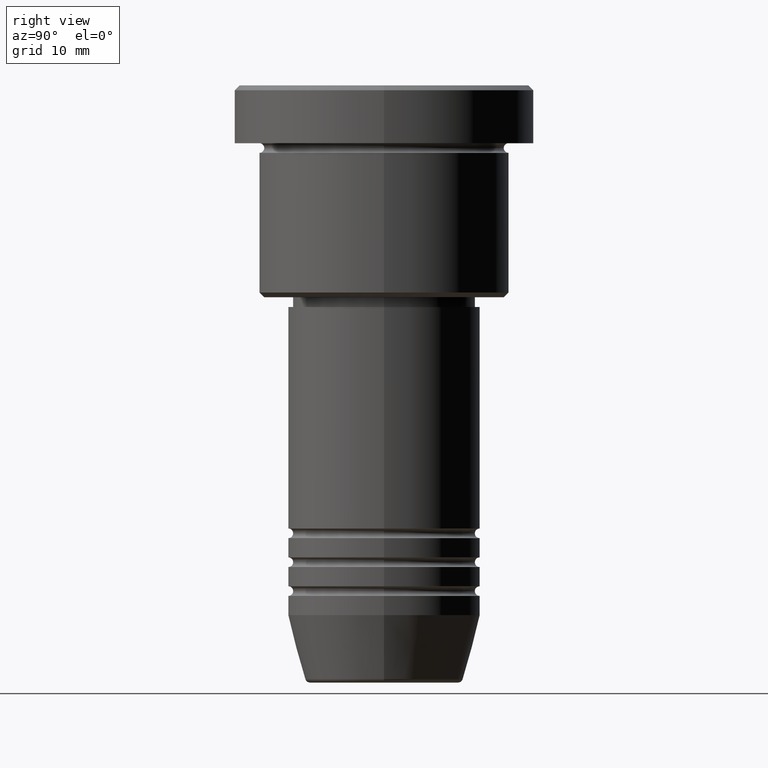
[diagram: clean part render]
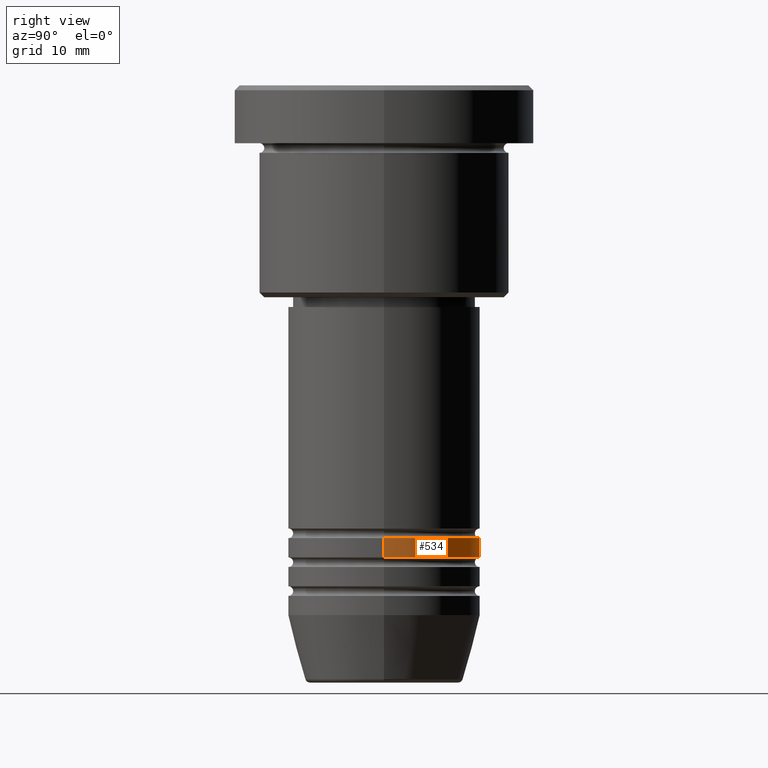
[diagram: same view with one face highlighted and labeled with its STEP entity id]
A machine part, right view. The second image highlights one B-rep face of the part: STEP entity #534.
In plain terms, the highlighted cylindrical surface (partial cylindrical patch) has radius 10 mm, axis along (-0, -0, 1).
Its self-contained STEP definition (entity closure, byte-faithful):
#132 = CARTESIAN_POINT ( 'NONE',  ( 10.00000000000000000, 0.000000000000000000, -46.99999999999998579 ) ) ;
#158 = DIRECTION ( 'NONE',  ( -0.000000000000000000, -0.000000000000000000, 1.000000000000000000 ) ) ;
#206 = DIRECTION ( 'NONE',  ( 1.000000000000000000, 0.000000000000000000, 0.000000000000000000 ) ) ;
#219 = ORIENTED_EDGE ( 'NONE', *, *, #677, .F. ) ;
#257 = CARTESIAN_POINT ( 'NONE',  ( 10.00000000000000000, 0.000000000000000000, 0.000000000000000000 ) ) ;
#259 = AXIS2_PLACEMENT_3D ( 'NONE', #612, #158, #413 ) ;
#297 = VECTOR ( 'NONE', #667, 1000.000000000000000 ) ;
#311 = VERTEX_POINT ( 'NONE', #965 ) ;
#345 = EDGE_CURVE ( 'NONE', #772, #437, #436, .T. ) ;
#388 = EDGE_CURVE ( 'NONE', #878, #437, #939, .T. ) ;
#389 = CARTESIAN_POINT ( 'NONE',  ( -10.00000000000000000, 1.224646799147353256E-15, -46.99999999999998579 ) ) ;
#413 = DIRECTION ( 'NONE',  ( 1.000000000000000000, 0.000000000000000000, 0.000000000000000000 ) ) ;
#414 = CARTESIAN_POINT ( 'NONE',  ( 0.000000000000000000, 0.000000000000000000, -46.99999999999998579 ) ) ;
#415 = ORIENTED_EDGE ( 'NONE', *, *, #481, .T. ) ;
#436 = CIRCLE ( 'NONE', #1099, 10.00000000000000000 ) ;
#437 = VERTEX_POINT ( 'NONE', #389 ) ;
#444 = DIRECTION ( 'NONE',  ( -0.000000000000000000, -0.000000000000000000, 1.000000000000000000 ) ) ;
#464 = ORIENTED_EDGE ( 'NONE', *, *, #388, .T. ) ;
#477 = CARTESIAN_POINT ( 'NONE',  ( -10.00000000000000000, 1.224646799147353256E-15, -48.99999999999997868 ) ) ;
#481 = EDGE_CURVE ( 'NONE', #311, #878, #1079, .T. ) ;
#528 = EDGE_LOOP ( 'NONE', ( #415, #464, #962, #219 ) ) ;
#534 = ADVANCED_FACE ( 'NONE', ( #886 ), #983, .T. ) ;
#612 = CARTESIAN_POINT ( 'NONE',  ( 0.000000000000000000, 0.000000000000000000, 0.000000000000000000 ) ) ;
#667 = DIRECTION ( 'NONE',  ( -0.000000000000000000, -0.000000000000000000, 1.000000000000000000 ) ) ;
#674 = DIRECTION ( 'NONE',  ( -0.000000000000000000, -0.000000000000000000, 1.000000000000000000 ) ) ;
#677 = EDGE_CURVE ( 'NONE', #311, #772, #827, .T. ) ;
#734 = DIRECTION ( 'NONE',  ( -0.000000000000000000, -0.000000000000000000, 1.000000000000000000 ) ) ;
#772 = VERTEX_POINT ( 'NONE', #132 ) ;
#827 = LINE ( 'NONE', #257, #1122 ) ;
#851 = CARTESIAN_POINT ( 'NONE',  ( -10.00000000000000000, 1.224646799147353256E-15, 0.000000000000000000 ) ) ;
#878 = VERTEX_POINT ( 'NONE', #477 ) ;
#886 = FACE_OUTER_BOUND ( 'NONE', #528, .T. ) ;
#939 = LINE ( 'NONE', #851, #297 ) ;
#962 = ORIENTED_EDGE ( 'NONE', *, *, #345, .F. ) ;
#965 = CARTESIAN_POINT ( 'NONE',  ( 10.00000000000000000, 0.000000000000000000, -48.99999999999997868 ) ) ;
#983 = CYLINDRICAL_SURFACE ( 'NONE', #259, 10.00000000000000000 ) ;
#1023 = AXIS2_PLACEMENT_3D ( 'NONE', #1114, #674, #206 ) ;
#1079 = CIRCLE ( 'NONE', #1023, 10.00000000000000000 ) ;
#1090 = DIRECTION ( 'NONE',  ( 1.000000000000000000, 0.000000000000000000, 0.000000000000000000 ) ) ;
#1099 = AXIS2_PLACEMENT_3D ( 'NONE', #414, #734, #1090 ) ;
#1114 = CARTESIAN_POINT ( 'NONE',  ( 0.000000000000000000, 0.000000000000000000, -48.99999999999997868 ) ) ;
#1122 = VECTOR ( 'NONE', #444, 1000.000000000000000 ) ;